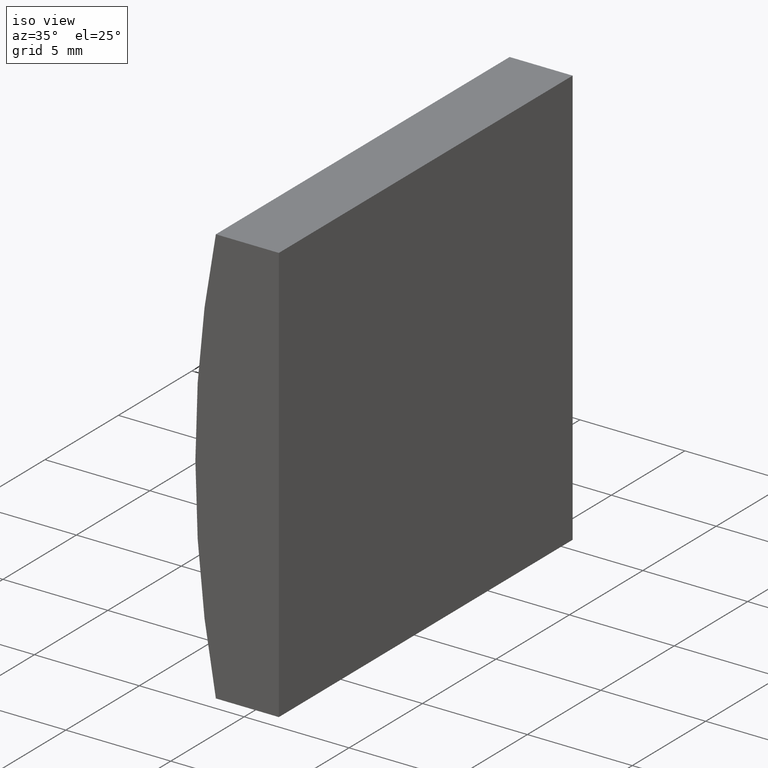
[diagram: clean part render]
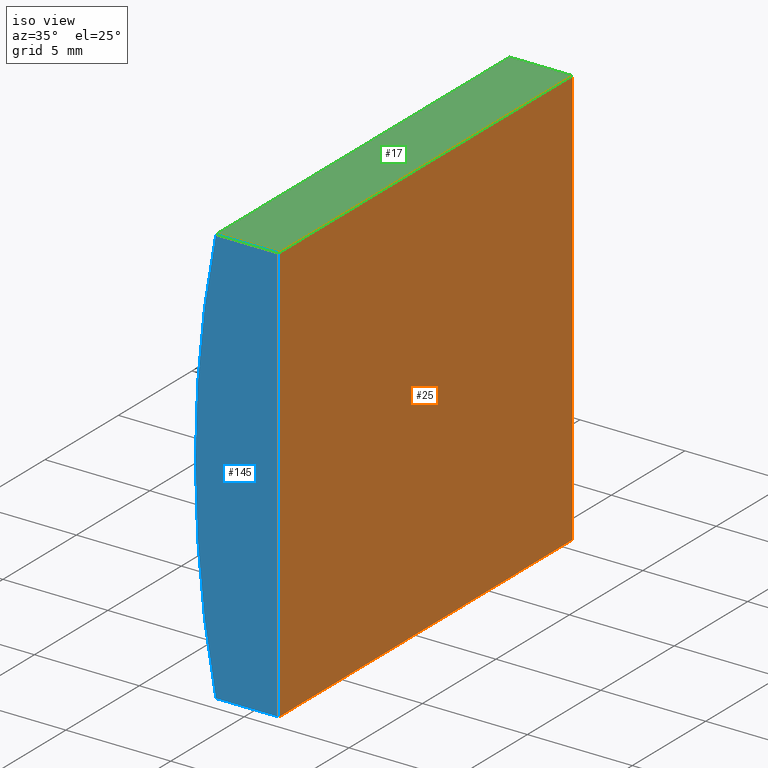
[diagram: same view with three faces highlighted in distinct colors, each labeled with its STEP entity id]
A machine part, iso view with three faces highlighted in distinct colors.
Their STEP definitions:

[orange] entity #25 — the highlighted planar face has unit normal (-1, 0, 0).
#1 = AXIS2_PLACEMENT_3D ( 'NONE', #92, #126, #51 ) ;
#7 = LINE ( 'NONE', #62, #59 ) ;
#9 = ORIENTED_EDGE ( 'NONE', *, *, #64, .T. ) ;
#11 = EDGE_CURVE ( 'NONE', #41, #36, #93, .T. ) ;
#12 = VECTOR ( 'NONE', #60, 1000.000000000000000 ) ;
#15 = EDGE_LOOP ( 'NONE', ( #9, #153, #198, #112 ) ) ;
#19 = DIRECTION ( 'NONE',  ( -3.469446951953615200E-016, -0.0000000000000000000, -1.000000000000000000 ) ) ;
#25 = ADVANCED_FACE ( 'NONE', ( #107 ), #40, .F. ) ;
#36 = VERTEX_POINT ( 'NONE', #148 ) ;
#39 = CARTESIAN_POINT ( 'NONE',  ( -43.34479566514873000, 20.00000000000000000, 10.00000000000000000 ) ) ;
#40 = PLANE ( 'NONE',  #1 ) ;
#41 = VERTEX_POINT ( 'NONE', #90 ) ;
#51 = DIRECTION ( 'NONE',  ( 3.469446951953615200E-016, 0.0000000000000000000, 1.000000000000000000 ) ) ;
#59 = VECTOR ( 'NONE', #155, 1000.000000000000000 ) ;
#60 = DIRECTION ( 'NONE',  ( -0.0000000000000000000, -1.000000000000000000, -0.0000000000000000000 ) ) ;
#62 = CARTESIAN_POINT ( 'NONE',  ( -43.34479566514873700, 0.0000000000000000000, -9.999999999999992900 ) ) ;
#64 = EDGE_CURVE ( 'NONE', #103, #104, #7, .T. ) ;
#79 = CARTESIAN_POINT ( 'NONE',  ( -43.34479566514873000, 0.0000000000000000000, 10.00000000000000000 ) ) ;
#90 = CARTESIAN_POINT ( 'NONE',  ( -43.34479566514873000, 20.00000000000000000, 10.00000000000000000 ) ) ;
#92 = CARTESIAN_POINT ( 'NONE',  ( -43.34479566514873700, 20.00000000000000000, -9.999999999999992900 ) ) ;
#93 = LINE ( 'NONE', #195, #109 ) ;
#103 = VERTEX_POINT ( 'NONE', #79 ) ;
#104 = VERTEX_POINT ( 'NONE', #165 ) ;
#107 = FACE_OUTER_BOUND ( 'NONE', #15, .T. ) ;
#109 = VECTOR ( 'NONE', #19, 1000.000000000000000 ) ;
#111 = DIRECTION ( 'NONE',  ( -0.0000000000000000000, -1.000000000000000000, -0.0000000000000000000 ) ) ;
#112 = ORIENTED_EDGE ( 'NONE', *, *, #122, .T. ) ;
#122 = EDGE_CURVE ( 'NONE', #41, #103, #183, .T. ) ;
#126 = DIRECTION ( 'NONE',  ( -1.000000000000000000, 0.0000000000000000000, 3.469446951953615200E-016 ) ) ;
#148 = CARTESIAN_POINT ( 'NONE',  ( -43.34479566514873700, 20.00000000000000000, -9.999999999999992900 ) ) ;
#153 = ORIENTED_EDGE ( 'NONE', *, *, #196, .F. ) ;
#155 = DIRECTION ( 'NONE',  ( -3.469446951953615200E-016, -0.0000000000000000000, -1.000000000000000000 ) ) ;
#164 = LINE ( 'NONE', #189, #182 ) ;
#165 = CARTESIAN_POINT ( 'NONE',  ( -43.34479566514873700, 0.0000000000000000000, -9.999999999999992900 ) ) ;
#182 = VECTOR ( 'NONE', #111, 1000.000000000000000 ) ;
#183 = LINE ( 'NONE', #39, #12 ) ;
#189 = CARTESIAN_POINT ( 'NONE',  ( -43.34479566514873700, 20.00000000000000000, -9.999999999999992900 ) ) ;
#195 = CARTESIAN_POINT ( 'NONE',  ( -43.34479566514873700, 20.00000000000000000, -9.999999999999992900 ) ) ;
#196 = EDGE_CURVE ( 'NONE', #36, #104, #164, .T. ) ;
#198 = ORIENTED_EDGE ( 'NONE', *, *, #11, .F. ) ;

[blue] entity #145 — the highlighted planar face has unit normal (0, 1, 0).
#7 = LINE ( 'NONE', #62, #59 ) ;
#8 = EDGE_CURVE ( 'NONE', #66, #141, #55, .T. ) ;
#16 = DIRECTION ( 'NONE',  ( 0.0000000000000000000, 1.000000000000000000, 0.0000000000000000000 ) ) ;
#21 = DIRECTION ( 'NONE',  ( 0.0000000000000000000, 1.000000000000000000, 0.0000000000000000000 ) ) ;
#33 = ORIENTED_EDGE ( 'NONE', *, *, #38, .F. ) ;
#35 = LINE ( 'NONE', #167, #168 ) ;
#37 = CARTESIAN_POINT ( 'NONE',  ( -46.34807366568831100, 0.0000000000000000000, -10.00000000000000000 ) ) ;
#38 = EDGE_CURVE ( 'NONE', #141, #103, #35, .T. ) ;
#49 = DIRECTION ( 'NONE',  ( 0.0000000000000000000, 0.0000000000000000000, 1.000000000000000000 ) ) ;
#55 = CIRCLE ( 'NONE', #178, 51.68000000000000700 ) ;
#58 = LINE ( 'NONE', #98, #78 ) ;
#59 = VECTOR ( 'NONE', #155, 1000.000000000000000 ) ;
#62 = CARTESIAN_POINT ( 'NONE',  ( -43.34479566514873700, 0.0000000000000000000, -9.999999999999992900 ) ) ;
#64 = EDGE_CURVE ( 'NONE', #103, #104, #7, .T. ) ;
#66 = VERTEX_POINT ( 'NONE', #37 ) ;
#74 = FACE_OUTER_BOUND ( 'NONE', #123, .T. ) ;
#78 = VECTOR ( 'NONE', #94, 1000.000000000000000 ) ;
#79 = CARTESIAN_POINT ( 'NONE',  ( -43.34479566514873000, 0.0000000000000000000, 10.00000000000000000 ) ) ;
#94 = DIRECTION ( 'NONE',  ( -1.000000000000000000, -0.0000000000000000000, -2.310440093344863800E-015 ) ) ;
#95 = ORIENTED_EDGE ( 'NONE', *, *, #64, .F. ) ;
#98 = CARTESIAN_POINT ( 'NONE',  ( -46.34807366568831100, 0.0000000000000000000, -10.00000000000000000 ) ) ;
#103 = VERTEX_POINT ( 'NONE', #79 ) ;
#104 = VERTEX_POINT ( 'NONE', #165 ) ;
#110 = AXIS2_PLACEMENT_3D ( 'NONE', #197, #16, #163 ) ;
#123 = EDGE_LOOP ( 'NONE', ( #160, #180, #95, #33 ) ) ;
#130 = CARTESIAN_POINT ( 'NONE',  ( 4.355204334851265500, 0.0000000000000000000, 4.286263797015675000E-017 ) ) ;
#141 = VERTEX_POINT ( 'NONE', #187 ) ;
#145 = ADVANCED_FACE ( 'NONE', ( #74 ), #176, .F. ) ;
#147 = DIRECTION ( 'NONE',  ( 1.000000000000000000, 0.0000000000000000000, 0.0000000000000000000 ) ) ;
#155 = DIRECTION ( 'NONE',  ( -3.469446951953615200E-016, -0.0000000000000000000, -1.000000000000000000 ) ) ;
#159 = EDGE_CURVE ( 'NONE', #104, #66, #58, .T. ) ;
#160 = ORIENTED_EDGE ( 'NONE', *, *, #8, .F. ) ;
#163 = DIRECTION ( 'NONE',  ( 0.0000000000000000000, -0.0000000000000000000, 1.000000000000000000 ) ) ;
#165 = CARTESIAN_POINT ( 'NONE',  ( -43.34479566514873700, 0.0000000000000000000, -9.999999999999992900 ) ) ;
#167 = CARTESIAN_POINT ( 'NONE',  ( -46.34807366568830400, 0.0000000000000000000, 10.00000000000000000 ) ) ;
#168 = VECTOR ( 'NONE', #147, 1000.000000000000000 ) ;
#176 = PLANE ( 'NONE',  #110 ) ;
#178 = AXIS2_PLACEMENT_3D ( 'NONE', #130, #21, #49 ) ;
#180 = ORIENTED_EDGE ( 'NONE', *, *, #159, .F. ) ;
#187 = CARTESIAN_POINT ( 'NONE',  ( -46.34807366568830400, 0.0000000000000000000, 10.00000000000000000 ) ) ;
#197 = CARTESIAN_POINT ( 'NONE',  ( 4.355204334851265500, 0.0000000000000000000, 4.286263797015675000E-017 ) ) ;

[green] entity #17 — the highlighted planar face has unit normal (0, 0, -1).
#12 = VECTOR ( 'NONE', #60, 1000.000000000000000 ) ;
#17 = ADVANCED_FACE ( 'NONE', ( #204 ), #34, .F. ) ;
#22 = EDGE_LOOP ( 'NONE', ( #86, #45, #144, #116 ) ) ;
#29 = CARTESIAN_POINT ( 'NONE',  ( -46.34807366568830400, 20.00000000000000000, 10.00000000000000000 ) ) ;
#34 = PLANE ( 'NONE',  #135 ) ;
#35 = LINE ( 'NONE', #167, #168 ) ;
#38 = EDGE_CURVE ( 'NONE', #141, #103, #35, .T. ) ;
#39 = CARTESIAN_POINT ( 'NONE',  ( -43.34479566514873000, 20.00000000000000000, 10.00000000000000000 ) ) ;
#41 = VERTEX_POINT ( 'NONE', #90 ) ;
#45 = ORIENTED_EDGE ( 'NONE', *, *, #122, .F. ) ;
#52 = CARTESIAN_POINT ( 'NONE',  ( -46.34807366568830400, 20.00000000000000000, 10.00000000000000000 ) ) ;
#53 = VECTOR ( 'NONE', #173, 1000.000000000000000 ) ;
#60 = DIRECTION ( 'NONE',  ( -0.0000000000000000000, -1.000000000000000000, -0.0000000000000000000 ) ) ;
#68 = LINE ( 'NONE', #139, #53 ) ;
#79 = CARTESIAN_POINT ( 'NONE',  ( -43.34479566514873000, 0.0000000000000000000, 10.00000000000000000 ) ) ;
#83 = DIRECTION ( 'NONE',  ( -1.000000000000000000, 0.0000000000000000000, -0.0000000000000000000 ) ) ;
#86 = ORIENTED_EDGE ( 'NONE', *, *, #38, .T. ) ;
#90 = CARTESIAN_POINT ( 'NONE',  ( -43.34479566514873000, 20.00000000000000000, 10.00000000000000000 ) ) ;
#96 = DIRECTION ( 'NONE',  ( 0.0000000000000000000, 0.0000000000000000000, -1.000000000000000000 ) ) ;
#103 = VERTEX_POINT ( 'NONE', #79 ) ;
#116 = ORIENTED_EDGE ( 'NONE', *, *, #184, .T. ) ;
#122 = EDGE_CURVE ( 'NONE', #41, #103, #183, .T. ) ;
#124 = DIRECTION ( 'NONE',  ( -0.0000000000000000000, -1.000000000000000000, -0.0000000000000000000 ) ) ;
#134 = EDGE_CURVE ( 'NONE', #152, #41, #68, .T. ) ;
#135 = AXIS2_PLACEMENT_3D ( 'NONE', #29, #96, #83 ) ;
#139 = CARTESIAN_POINT ( 'NONE',  ( -46.34807366568830400, 20.00000000000000000, 10.00000000000000000 ) ) ;
#141 = VERTEX_POINT ( 'NONE', #187 ) ;
#144 = ORIENTED_EDGE ( 'NONE', *, *, #134, .F. ) ;
#147 = DIRECTION ( 'NONE',  ( 1.000000000000000000, 0.0000000000000000000, 0.0000000000000000000 ) ) ;
#152 = VERTEX_POINT ( 'NONE', #52 ) ;
#167 = CARTESIAN_POINT ( 'NONE',  ( -46.34807366568830400, 0.0000000000000000000, 10.00000000000000000 ) ) ;
#168 = VECTOR ( 'NONE', #147, 1000.000000000000000 ) ;
#173 = DIRECTION ( 'NONE',  ( 1.000000000000000000, 0.0000000000000000000, 0.0000000000000000000 ) ) ;
#183 = LINE ( 'NONE', #39, #12 ) ;
#184 = EDGE_CURVE ( 'NONE', #152, #141, #191, .T. ) ;
#187 = CARTESIAN_POINT ( 'NONE',  ( -46.34807366568830400, 0.0000000000000000000, 10.00000000000000000 ) ) ;
#188 = CARTESIAN_POINT ( 'NONE',  ( -46.34807366568830400, 20.00000000000000000, 10.00000000000000000 ) ) ;
#191 = LINE ( 'NONE', #188, #192 ) ;
#192 = VECTOR ( 'NONE', #124, 1000.000000000000000 ) ;
#204 = FACE_OUTER_BOUND ( 'NONE', #22, .T. ) ;